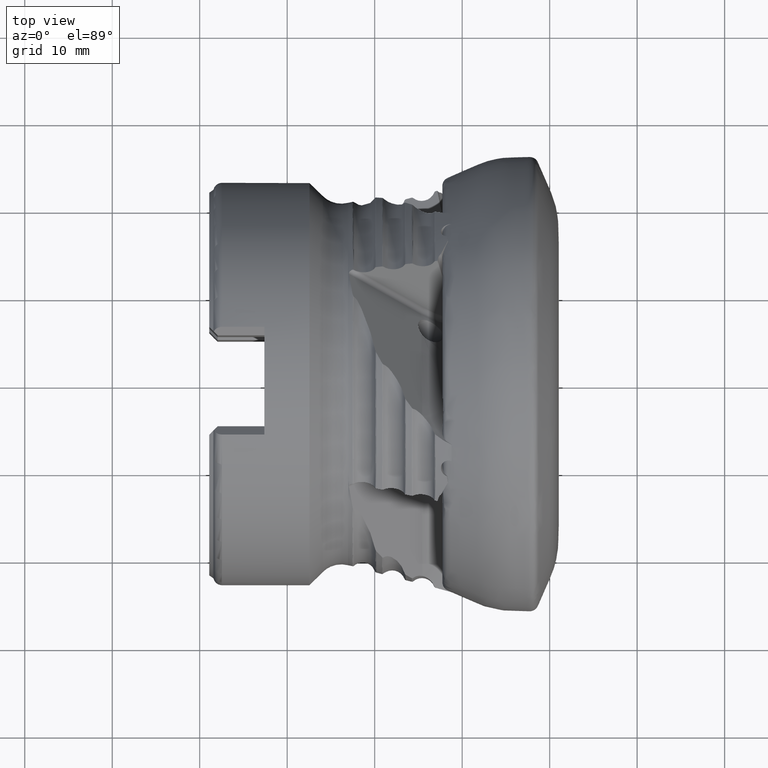
[diagram: clean part render]
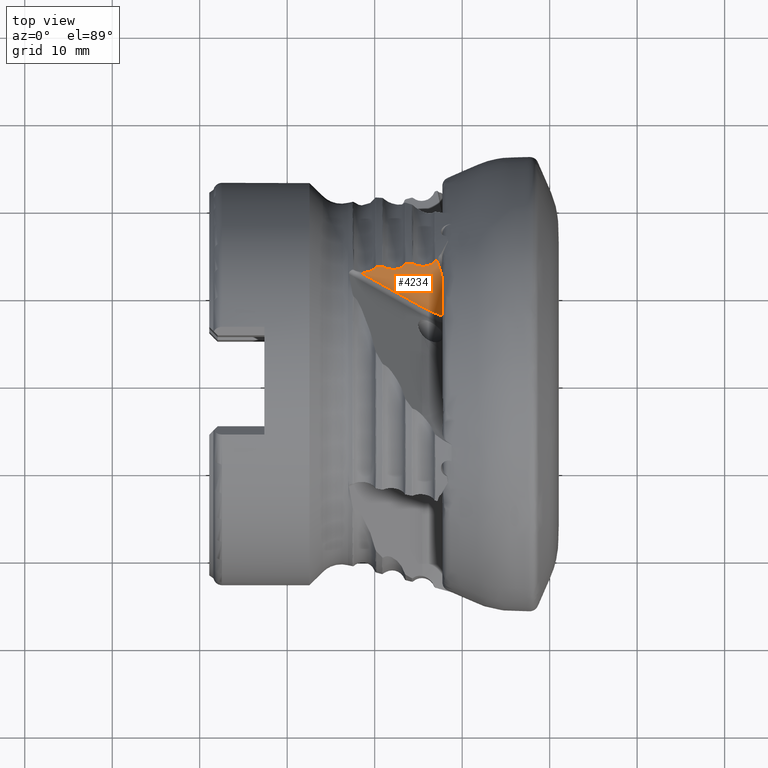
[diagram: same view with one face highlighted and labeled with its STEP entity id]
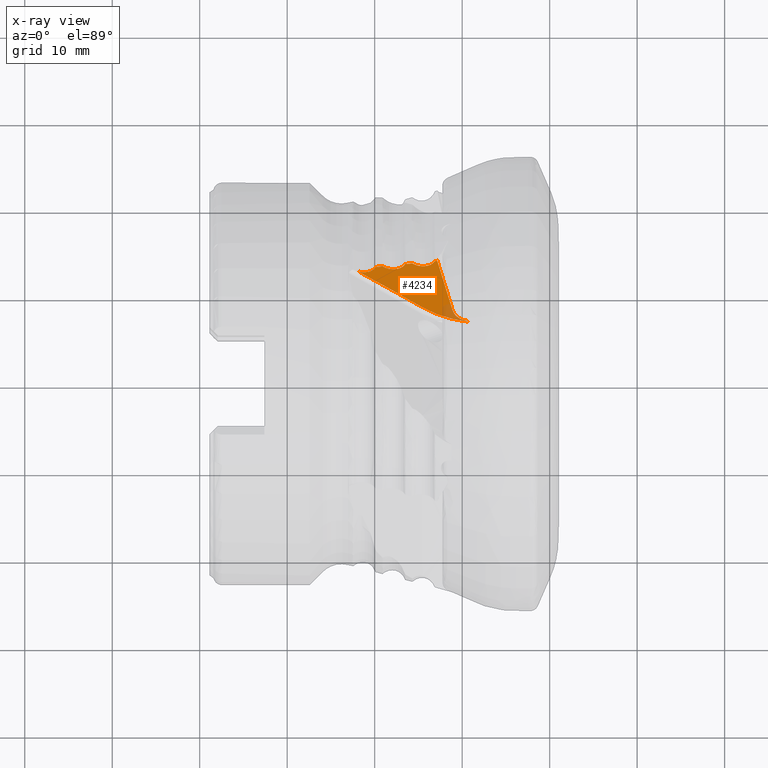
[diagram: x-ray of the same camera — body ghosted, the highlighted face saturated]
A machine part, top view. The second image highlights one B-rep face of the part: STEP entity #4234.
The next image is the same camera in x-ray: the body ghosted, the highlighted face saturated — about 6% of this face is hidden behind the body in this view.
In plain terms, the highlighted planar face has unit normal (0.0698, 0.807, -0.5864).
Its self-contained STEP definition (entity closure, byte-faithful):
#108 = CARTESIAN_POINT ( 'NONE',  ( -16.43861068266126300, 13.40157069699173900, 17.99083532026825300 ) ) ;
#143 = CARTESIAN_POINT ( 'NONE',  ( -9.397458177563091700, 7.030580160949561700, 10.05958109203079000 ) ) ;
#173 = CARTESIAN_POINT ( 'NONE',  ( -10.78956742215183000, 7.656934424120536600, 10.75606927445182700 ) ) ;
#212 = VERTEX_POINT ( 'NONE', #1085 ) ;
#238 = CARTESIAN_POINT ( 'NONE',  ( -18.09850826208656800, 12.82970374015972400, 17.00625561156784100 ) ) ;
#311 = EDGE_CURVE ( 'NONE', #12110, #10103, #8248, .T. ) ;
#318 = B_SPLINE_CURVE_WITH_KNOTS ( 'NONE', 3,
 ( #12067, #13151, #2555, #10073 ),
 .UNSPECIFIED., .F., .F.,
 ( 4, 4 ),
 ( 2.071828932983217700E-007, 0.0006823172012775557000 ),
 .UNSPECIFIED. ) ;
#396 = EDGE_CURVE ( 'NONE', #9804, #9575, #12041, .T. ) ;
#402 = ORIENTED_EDGE ( 'NONE', *, *, #311, .T. ) ;
#553 = VERTEX_POINT ( 'NONE', #957 ) ;
#605 = CARTESIAN_POINT ( 'NONE',  ( -13.78147426616036600, 13.24804150249320300, 18.09563099314815200 ) ) ;
#838 = EDGE_CURVE ( 'NONE', #3448, #9779, #7703, .T. ) ;
#902 = CARTESIAN_POINT ( 'NONE',  ( -16.57686742858335500, 13.33455268818872600, 17.88214500986381200 ) ) ;
#909 = B_SPLINE_CURVE_WITH_KNOTS ( 'NONE', 3,
 ( #3280, #9722, #11814, #5384 ),
 .UNSPECIFIED., .F., .F.,
 ( 4, 4 ),
 ( 0.006293737897955696500, 0.008576595139666872900 ),
 .UNSPECIFIED. ) ;
#917 = ORIENTED_EDGE ( 'NONE', *, *, #5654, .T. ) ;
#957 = CARTESIAN_POINT ( 'NONE',  ( -19.82556857491016800, 13.07202306451201900, 17.13431705826625900 ) ) ;
#1085 = CARTESIAN_POINT ( 'NONE',  ( -15.59741707130248200, 13.42956506044176900, 18.12944019837567600 ) ) ;
#1124 = CARTESIAN_POINT ( 'NONE',  ( -8.652012492192163500, 8.489239308456161500, 12.15593630807647000 ) ) ;
#1276 = CARTESIAN_POINT ( 'NONE',  ( -17.73355322210864700, 12.82021816998018000, 17.03661730387327800 ) ) ;
#1294 = AXIS2_PLACEMENT_3D ( 'NONE', #4786, #5887, #13347 ) ;
#1310 = CARTESIAN_POINT ( 'NONE',  ( -21.44799061497791100, 12.49695347634819400, 16.14978764313628200 ) ) ;
#1325 = CARTESIAN_POINT ( 'NONE',  ( -19.16711922229170300, 13.13622455116607800, 17.30101630333915700 ) ) ;
#1562 = DIRECTION ( 'NONE',  ( -0.06975647374411166100, -0.8070462696377019900, 0.5863534369598740700 ) ) ;
#1637 = CARTESIAN_POINT ( 'NONE',  ( -13.41097358463003900, 13.41496708648232800, 18.36946155473117100 ) ) ;
#1661 = AXIS2_PLACEMENT_3D ( 'NONE', #7937, #1562, #9038 ) ;
#1680 = CARTESIAN_POINT ( 'NONE',  ( -12.91288166073550900, 13.74291754459847500, 18.88010293787429500 ) ) ;
#1801 = VECTOR ( 'NONE', #12544, 1000.000000000000000 ) ;
#1861 = ORIENTED_EDGE ( 'NONE', *, *, #838, .F. ) ;
#1871 = EDGE_CURVE ( 'NONE', #5474, #2950, #5254, .T. ) ;
#1878 = ORIENTED_EDGE ( 'NONE', *, *, #8337, .T. ) ;
#1889 = VECTOR ( 'NONE', #8515, 1000.000000000000100 ) ;
#2040 = CARTESIAN_POINT ( 'NONE',  ( -11.00947268404274100, 8.060292500884134600, 11.28508265784952900 ) ) ;
#2132 = EDGE_CURVE ( 'NONE', #3448, #6011, #10698, .T. ) ;
#2159 = DIRECTION ( 'NONE',  ( 0.0000000000000000000, -0.5877852522924745800, -0.8090169943749462300 ) ) ;
#2289 = LINE ( 'NONE', #2319, #7992 ) ;
#2296 = EDGE_CURVE ( 'NONE', #11387, #3852, #11044, .T. ) ;
#2317 = CARTESIAN_POINT ( 'NONE',  ( -17.38184703372067500, 12.86342325395027500, 17.13792528912423300 ) ) ;
#2319 = CARTESIAN_POINT ( 'NONE',  ( -12.30943080110858300, 12.17640538204708100, 16.79577441509734100 ) ) ;
#2359 = CARTESIAN_POINT ( 'NONE',  ( -21.15950711162447500, 12.48950488767031100, 16.17385544138080200 ) ) ;
#2374 = CARTESIAN_POINT ( 'NONE',  ( -19.60609015536287100, 13.09343441009476000, 17.18989784817344800 ) ) ;
#2540 = CARTESIAN_POINT ( 'NONE',  ( -19.96382532083226400, 13.00492409718656700, 17.02551531801522700 ) ) ;
#2555 = CARTESIAN_POINT ( 'NONE',  ( -16.21913171739706500, 13.42287169382948300, 18.04626429307996100 ) ) ;
#2643 = CARTESIAN_POINT ( 'NONE',  ( -15.40434576522243600, 13.33033808226997900, 18.01583501609341900 ) ) ;
#2698 = CARTESIAN_POINT ( 'NONE',  ( -13.18990953633444500, 13.66256030447094700, 18.73654362141433800 ) ) ;
#2723 = B_SPLINE_CURVE_WITH_KNOTS ( 'NONE', 3,
 ( #13588, #6136, #7237, #902 ),
 .UNSPECIFIED., .F., .F.,
 ( 4, 4 ),
 ( 2.042441647271746600E-007, 0.0001950798160799178000 ),
 .UNSPECIFIED. ) ;
#2866 = VERTEX_POINT ( 'NONE', #2540 ) ;
#2913 = B_SPLINE_CURVE_WITH_KNOTS ( 'NONE', 3,
 ( #9780, #3343, #10827, #4402 ),
 .UNSPECIFIED., .F., .F.,
 ( 4, 4 ),
 ( 2.633986855497532700E-007, 0.0001951916215243826800 ),
 .UNSPECIFIED. ) ;
#2914 = CARTESIAN_POINT ( 'NONE',  ( -14.33897279392034600, 8.470638421954205900, 11.45377606293606300 ) ) ;
#2950 = VERTEX_POINT ( 'NONE', #6844 ) ;
#3012 = B_SPLINE_CURVE_WITH_KNOTS ( 'NONE', 3,
 ( #6483, #5402, #11885, #5448, #12898, #6526, #238, #7628, #1276, #8747, #2317, #9829, #3400, #10885, #4452, #11925 ),
 .UNSPECIFIED., .F., .F.,
 ( 4, 2, 2, 2, 2, 2, 2, 4 ),
 ( 2.631532426385982900E-007, 0.0003657034762038021900, 0.0007311437991649658300, 0.001096584122126129400, 0.001462024445087292900, 0.001827464768048456400, 0.002192905091009620200, 0.002923785736931947200 ),
 .UNSPECIFIED. ) ;
#3100 = B_SPLINE_CURVE_WITH_KNOTS ( 'NONE', 3,
 ( #3390, #7614, #5491, #12934 ),
 .UNSPECIFIED., .F., .F.,
 ( 4, 4 ),
 ( 0.0001455972518984827800, 0.0003280413437152031100 ),
 .UNSPECIFIED. ) ;
#3280 = CARTESIAN_POINT ( 'NONE',  ( -11.77801937799846100, 10.37595619004133200, 14.38088890775128100 ) ) ;
#3289 = CARTESIAN_POINT ( 'NONE',  ( -9.731791060759395200, 7.098119302108699500, 10.11276629901111200 ) ) ;
#3343 = CARTESIAN_POINT ( 'NONE',  ( -15.64677715462576100, 13.45793987725530800, 18.16262258203416000 ) ) ;
#3390 = CARTESIAN_POINT ( 'NONE',  ( -9.296369407557094200, 6.934858443081393100, 9.939857637193977500 ) ) ;
#3400 = CARTESIAN_POINT ( 'NONE',  ( -17.06687222965878400, 12.95670477249104000, 17.30378776571907900 ) ) ;
#3435 = CARTESIAN_POINT ( 'NONE',  ( -20.88123003647491400, 12.51448243198339000, 16.24133975878158500 ) ) ;
#3448 = VERTEX_POINT ( 'NONE', #12904 ) ;
#3602 = ORIENTED_EDGE ( 'NONE', *, *, #12189, .T. ) ;
#3697 = CARTESIAN_POINT ( 'NONE',  ( -19.16711922229170300, 13.13622455116607800, 17.30101630333915700 ) ) ;
#3744 = CARTESIAN_POINT ( 'NONE',  ( -15.07131541548856300, 13.22006549212548200, 17.90367730450368100 ) ) ;
#3797 = ORIENTED_EDGE ( 'NONE', *, *, #2132, .T. ) ;
#3815 = VERTEX_POINT ( 'NONE', #2040 ) ;
#3830 = CARTESIAN_POINT ( 'NONE',  ( -9.296369407557094200, 6.934858443081393100, 9.939857637193977500 ) ) ;
#3852 = VERTEX_POINT ( 'NONE', #4235 ) ;
#4100 = CARTESIAN_POINT ( 'NONE',  ( -15.78016133004279300, 13.46544482704581500, 18.15708399763538900 ) ) ;
#4234 = ADVANCED_FACE ( 'NONE', ( #4309 ), #12290, .F. ) ;
#4235 = CARTESIAN_POINT ( 'NONE',  ( -11.02181243157380300, 8.099364370274470200, 11.33739245469085300 ) ) ;
#4309 = FACE_OUTER_BOUND ( 'NONE', #5107, .T. ) ;
#4402 = CARTESIAN_POINT ( 'NONE',  ( -15.78016133004279300, 13.46544482704581500, 18.15708399763538900 ) ) ;
#4452 = CARTESIAN_POINT ( 'NONE',  ( -16.65879395285666200, 13.20218425536682000, 17.69020897219064300 ) ) ;
#4498 = CARTESIAN_POINT ( 'NONE',  ( -20.53437351773821000, 12.59166987306996400, 16.38884349728179400 ) ) ;
#4616 = B_SPLINE_CURVE_WITH_KNOTS ( 'NONE', 3,
 ( #10910, #11906, #11945, #5525 ),
 .UNSPECIFIED., .F., .F.,
 ( 4, 4 ),
 ( 2.042851625453270200E-007, 0.0001951627072948550600 ),
 .UNSPECIFIED. ) ;
#4749 = CARTESIAN_POINT ( 'NONE',  ( -13.18990953633444500, 13.66256030447094700, 18.73654362141433800 ) ) ;
#4780 = CARTESIAN_POINT ( 'NONE',  ( -14.71191661509523200, 13.15850046980986600, 17.86169677353877100 ) ) ;
#4786 = CARTESIAN_POINT ( 'NONE',  ( -8.324240303673304800, 12.39586971500646400, 17.57194571187131900 ) ) ;
#4801 = DIRECTION ( 'NONE',  ( -0.06975647374411166100, -0.8070462696377019900, 0.5863534369598740700 ) ) ;
#5107 = EDGE_LOOP ( 'NONE', ( #917, #5715, #9982, #7864, #8535, #8418, #12319, #5649, #1861, #3797, #11276, #13103, #3602, #1878, #9816, #5494, #8543, #11184, #8839, #10266, #402 ) ) ;
#5133 = CARTESIAN_POINT ( 'NONE',  ( -11.77801937799846100, 10.37595619004133200, 14.38088890775128100 ) ) ;
#5254 = B_SPLINE_CURVE_WITH_KNOTS ( 'NONE', 3,
 ( #11822, #11774, #3289, #5393, #12853, #6474, #173, #7577 ),
 .UNSPECIFIED., .F., .F.,
 ( 4, 2, 2, 4 ),
 ( 0.0003686685164815478500, 0.0008822852126406577000, 0.001395901908799767600, 0.002423135301117989800 ),
 .UNSPECIFIED. ) ;
#5271 = EDGE_CURVE ( 'NONE', #9199, #8039, #2723, .T. ) ;
#5311 = CARTESIAN_POINT ( 'NONE',  ( -13.05165279041235000, 13.72951235472983600, 18.84514314767114500 ) ) ;
#5344 = CARTESIAN_POINT ( 'NONE',  ( -13.16807515463631300, 13.69782569677268200, 18.78767983191141900 ) ) ;
#5384 = CARTESIAN_POINT ( 'NONE',  ( -12.20164075352019300, 11.71728663572583600, 16.17667508858540500 ) ) ;
#5393 = CARTESIAN_POINT ( 'NONE',  ( -10.04071098008520800, 7.199935763844577800, 10.21615348422908700 ) ) ;
#5402 = CARTESIAN_POINT ( 'NONE',  ( -18.89178927181045300, 13.04723702992555400, 17.21129055555036700 ) ) ;
#5448 = CARTESIAN_POINT ( 'NONE',  ( -18.57466319345568500, 12.92308117914809700, 17.07813209796523400 ) ) ;
#5474 = VERTEX_POINT ( 'NONE', #143 ) ;
#5491 = CARTESIAN_POINT ( 'NONE',  ( -9.365284700527322300, 6.998301575133290900, 10.01898099915893600 ) ) ;
#5494 = ORIENTED_EDGE ( 'NONE', *, *, #9461, .F. ) ;
#5525 = CARTESIAN_POINT ( 'NONE',  ( -19.96382532083226400, 13.00492409718656700, 17.02551531801522700 ) ) ;
#5526 = EDGE_CURVE ( 'NONE', #9575, #553, #13006, .T. ) ;
#5536 = CARTESIAN_POINT ( 'NONE',  ( -20.12674045869474400, 12.80813587488011000, 16.73527810692247200 ) ) ;
#5649 = ORIENTED_EDGE ( 'NONE', *, *, #12477, .T. ) ;
#5654 = EDGE_CURVE ( 'NONE', #10103, #6306, #11801, .T. ) ;
#5715 = ORIENTED_EDGE ( 'NONE', *, *, #6560, .T. ) ;
#5831 = CARTESIAN_POINT ( 'NONE',  ( -14.34696883153343800, 13.14878992398179500, 17.89174795015788500 ) ) ;
#5887 = DIRECTION ( 'NONE',  ( 0.06975647374411163300, 0.8070462696377018700, -0.5863534369598739600 ) ) ;
#6011 = VERTEX_POINT ( 'NONE', #5311 ) ;
#6110 = EDGE_CURVE ( 'NONE', #12110, #2866, #12560, .T. ) ;
#6136 = CARTESIAN_POINT ( 'NONE',  ( -16.50220528946682600, 13.39539867719552500, 17.97477462977176500 ) ) ;
#6153 = CARTESIAN_POINT ( 'NONE',  ( -14.57450398657556100, 19.23058478786030900, 26.23555136144604600 ) ) ;
#6306 = VERTEX_POINT ( 'NONE', #3830 ) ;
#6418 = EDGE_CURVE ( 'NONE', #6446, #11387, #12746, .T. ) ;
#6446 = VERTEX_POINT ( 'NONE', #5133 ) ;
#6474 = CARTESIAN_POINT ( 'NONE',  ( -10.58321797656537900, 7.477513129714875400, 10.53366574026837400 ) ) ;
#6483 = CARTESIAN_POINT ( 'NONE',  ( -18.98437496355138900, 13.10042530422170000, 17.27348332988325600 ) ) ;
#6492 = VERTEX_POINT ( 'NONE', #4100 ) ;
#6526 = CARTESIAN_POINT ( 'NONE',  ( -18.22147809661717600, 12.84473060172881800, 17.01230900925636600 ) ) ;
#6560 = EDGE_CURVE ( 'NONE', #6306, #5474, #3100, .T. ) ;
#6608 = CARTESIAN_POINT ( 'NONE',  ( -19.96382532083226400, 13.00492409718656700, 17.02551531801522700 ) ) ;
#6844 = CARTESIAN_POINT ( 'NONE',  ( -10.91284576056877500, 7.853942336758898100, 11.01256139904253400 ) ) ;
#6866 = CARTESIAN_POINT ( 'NONE',  ( -15.50487232650634800, 13.37636538969873900, 18.06722686686061200 ) ) ;
#6911 = CARTESIAN_POINT ( 'NONE',  ( -13.99519617090303600, 13.19177736772873500, 17.99276428731708000 ) ) ;
#7027 = VECTOR ( 'NONE', #12351, 1000.000000000000000 ) ;
#7237 = CARTESIAN_POINT ( 'NONE',  ( -16.55503218237437900, 13.36983182820594400, 17.93330024531584900 ) ) ;
#7298 = EDGE_CURVE ( 'NONE', #3815, #2950, #10363, .T. ) ;
#7577 = CARTESIAN_POINT ( 'NONE',  ( -10.91284576056877500, 7.853942336758898100, 11.01256139904253400 ) ) ;
#7614 = CARTESIAN_POINT ( 'NONE',  ( -9.331724005736180800, 6.966361277582811000, 9.979011552768859900 ) ) ;
#7628 = CARTESIAN_POINT ( 'NONE',  ( -17.85401114173199500, 12.81755122342778600, 17.01861609793060400 ) ) ;
#7664 = EDGE_CURVE ( 'NONE', #3815, #3852, #2289, .T. ) ;
#7669 = CARTESIAN_POINT ( 'NONE',  ( -21.63791476225744500, 12.51974834464466300, 16.15856745801920300 ) ) ;
#7682 = DIRECTION ( 'NONE',  ( -0.1857083024379776500, 0.5880161258804218500, 0.7872416796068311100 ) ) ;
#7703 = LINE ( 'NONE', #8858, #7027 ) ;
#7746 = CARTESIAN_POINT ( 'NONE',  ( -19.16711922229170300, 13.13622455116607800, 17.30101630333915700 ) ) ;
#7785 = AXIS2_PLACEMENT_3D ( 'NONE', #11232, #4801, #12263 ) ;
#7816 = CARTESIAN_POINT ( 'NONE',  ( -19.03374485660783600, 13.12878713167561000, 17.30664666819140500 ) ) ;
#7834 = CARTESIAN_POINT ( 'NONE',  ( -19.10352484043138000, 13.14242201125503800, 17.31711198263366200 ) ) ;
#7864 = ORIENTED_EDGE ( 'NONE', *, *, #7298, .F. ) ;
#7937 = CARTESIAN_POINT ( 'NONE',  ( -8.324240303673304800, 12.39586971500646400, 17.57194571187131900 ) ) ;
#7964 = CARTESIAN_POINT ( 'NONE',  ( -11.13890039147297300, 8.352286459072505700, 11.67158028871967100 ) ) ;
#7975 = CARTESIAN_POINT ( 'NONE',  ( -18.98437496355138900, 13.10042530422170000, 17.27348332988325600 ) ) ;
#7992 = VECTOR ( 'NONE', #7682, 1000.000000000000000 ) ;
#8026 = CARTESIAN_POINT ( 'NONE',  ( -13.68011390152142100, 13.28488377772009700, 18.15839853245392300 ) ) ;
#8039 = VERTEX_POINT ( 'NONE', #12476 ) ;
#8073 = CARTESIAN_POINT ( 'NONE',  ( -12.98226741132286200, 13.73621538115905200, 18.86262361457657700 ) ) ;
#8225 = CARTESIAN_POINT ( 'NONE',  ( -12.20164075352019300, 11.71728663572583600, 16.17667508858540500 ) ) ;
#8248 = LINE ( 'NONE', #8416, #1889 ) ;
#8337 = EDGE_CURVE ( 'NONE', #6492, #9199, #318, .T. ) ;
#8416 = CARTESIAN_POINT ( 'NONE',  ( -14.33897279392035500, 8.470638421954204100, 11.45377606293606100 ) ) ;
#8418 = ORIENTED_EDGE ( 'NONE', *, *, #2296, .F. ) ;
#8429 = EDGE_CURVE ( 'NONE', #212, #10568, #11653, .T. ) ;
#8515 = DIRECTION ( 'NONE',  ( 0.7672847685016593900, -0.4190357909633837800, -0.4854720279450156500 ) ) ;
#8535 = ORIENTED_EDGE ( 'NONE', *, *, #7664, .T. ) ;
#8543 = ORIENTED_EDGE ( 'NONE', *, *, #396, .T. ) ;
#8580 = DIRECTION ( 'NONE',  ( -0.06975647374411166100, -0.8070462696377019900, 0.5863534369598740700 ) ) ;
#8607 = AXIS2_PLACEMENT_3D ( 'NONE', #1124, #8580, #2159 ) ;
#8747 = CARTESIAN_POINT ( 'NONE',  ( -17.49624793383155500, 12.84318138959950800, 17.09645486707680800 ) ) ;
#8760 = EDGE_CURVE ( 'NONE', #6011, #10568, #12065, .T. ) ;
#8782 = CARTESIAN_POINT ( 'NONE',  ( -21.35061066311600400, 12.49077426230795100, 16.15286764625547300 ) ) ;
#8797 = CARTESIAN_POINT ( 'NONE',  ( -19.38660699923315200, 13.11483482001872700, 17.24546414993271200 ) ) ;
#8829 = EDGE_CURVE ( 'NONE', #553, #2866, #4616, .T. ) ;
#8839 = ORIENTED_EDGE ( 'NONE', *, *, #8829, .T. ) ;
#8858 = CARTESIAN_POINT ( 'NONE',  ( -14.57450398657556100, 19.23058478786030900, 26.23555136144604600 ) ) ;
#9038 = DIRECTION ( 'NONE',  ( 1.838633322104422000E-015, 0.5877852522924743600, 0.8090169943749466700 ) ) ;
#9129 = CARTESIAN_POINT ( 'NONE',  ( -13.27185217578924400, 13.53021218641730900, 18.54463362745260500 ) ) ;
#9168 = CARTESIAN_POINT ( 'NONE',  ( -12.84349554130655900, 13.74961885100721500, 18.89758112545030500 ) ) ;
#9199 = VERTEX_POINT ( 'NONE', #108 ) ;
#9461 = EDGE_CURVE ( 'NONE', #9804, #8039, #3012, .T. ) ;
#9473 = CARTESIAN_POINT ( 'NONE',  ( -21.82370310153726900, 12.55826014123390700, 16.18947179185820700 ) ) ;
#9575 = VERTEX_POINT ( 'NONE', #3697 ) ;
#9671 = CARTESIAN_POINT ( 'NONE',  ( -13.11523731890928500, 13.72336972380964700, 18.82912410647437400 ) ) ;
#9722 = CARTESIAN_POINT ( 'NONE',  ( -12.00261872128174500, 10.81296764446554600, 14.95566375282887100 ) ) ;
#9779 = VERTEX_POINT ( 'NONE', #8225 ) ;
#9780 = CARTESIAN_POINT ( 'NONE',  ( -15.59741707130248200, 13.42956506044176900, 18.12944019837567600 ) ) ;
#9804 = VERTEX_POINT ( 'NONE', #12985 ) ;
#9816 = ORIENTED_EDGE ( 'NONE', *, *, #5271, .T. ) ;
#9829 = CARTESIAN_POINT ( 'NONE',  ( -17.16818908819229600, 12.91981008141259600, 17.24095325795623900 ) ) ;
#9866 = CARTESIAN_POINT ( 'NONE',  ( -21.06563337463098800, 12.49425418457294500, 16.19156012692394600 ) ) ;
#9886 = CARTESIAN_POINT ( 'NONE',  ( -19.82556857491016800, 13.07202306451201900, 17.13431705826625900 ) ) ;
#9982 = ORIENTED_EDGE ( 'NONE', *, *, #1871, .T. ) ;
#10073 = CARTESIAN_POINT ( 'NONE',  ( -16.43861068266126300, 13.40157069699173900, 17.99083532026825300 ) ) ;
#10103 = VERTEX_POINT ( 'NONE', #2914 ) ;
#10158 = CARTESIAN_POINT ( 'NONE',  ( -15.18789862198804900, 13.25211634734107600, 17.93392201467235500 ) ) ;
#10251 = CARTESIAN_POINT ( 'NONE',  ( -13.05165279041235000, 13.72951235472983600, 18.84514314767114500 ) ) ;
#10266 = ORIENTED_EDGE ( 'NONE', *, *, #6110, .F. ) ;
#10363 = CIRCLE ( 'NONE', #7785, 1.999999999999998200 ) ;
#10568 = VERTEX_POINT ( 'NONE', #4749 ) ;
#10698 = B_SPLINE_CURVE_WITH_KNOTS ( 'NONE', 3,
 ( #9168, #1680, #8073, #10251 ),
 .UNSPECIFIED., .F., .F.,
 ( 4, 4 ),
 ( 0.001940558869567106300, 0.002156159081865274900 ),
 .UNSPECIFIED. ) ;
#10733 = CARTESIAN_POINT ( 'NONE',  ( -13.05165279041235000, 13.72951235472983600, 18.84514314767114500 ) ) ;
#10827 = CARTESIAN_POINT ( 'NONE',  ( -15.71654555970165600, 13.47161311267451300, 18.17314206624505600 ) ) ;
#10885 = CARTESIAN_POINT ( 'NONE',  ( -16.79786497003318500, 13.08690045964577700, 17.51498963421374800 ) ) ;
#10910 = CARTESIAN_POINT ( 'NONE',  ( -19.82556857491016800, 13.07202306451201900, 17.13431705826625900 ) ) ;
#10918 = CARTESIAN_POINT ( 'NONE',  ( -20.79038518658909500, 12.53017007034139100, 16.27373944334828000 ) ) ;
#11044 = CIRCLE ( 'NONE', #8607, 2.537315167658677600 ) ;
#11184 = ORIENTED_EDGE ( 'NONE', *, *, #5526, .T. ) ;
#11204 = CARTESIAN_POINT ( 'NONE',  ( -14.83483983785600400, 13.17359646621139800, 17.86785087240442100 ) ) ;
#11232 = CARTESIAN_POINT ( 'NONE',  ( -9.049221209587088300, 8.168243496589589400, 11.66686890618835400 ) ) ;
#11276 = ORIENTED_EDGE ( 'NONE', *, *, #8760, .T. ) ;
#11387 = VERTEX_POINT ( 'NONE', #7964 ) ;
#11653 = B_SPLINE_CURVE_WITH_KNOTS ( 'NONE', 3,
 ( #12154, #6866, #2643, #10158, #3744, #11204, #4780, #12244, #5831, #13288, #6911, #605, #8026, #1637, #9129, #2698 ),
 .UNSPECIFIED., .F., .F.,
 ( 4, 2, 2, 2, 2, 2, 2, 4 ),
 ( 2.632379169981568400E-007, 0.0003656594739674015200, 0.0007310557100178049500, 0.001096451946068208200, 0.001461848182118611600, 0.001827244418169015000, 0.002192640654219418300, 0.002923433126320225100 ),
 .UNSPECIFIED. ) ;
#11774 = CARTESIAN_POINT ( 'NONE',  ( -9.565720063031806200, 7.057795740755692800, 10.07702257985688600 ) ) ;
#11801 = CIRCLE ( 'NONE', #1661, 9.434852806819121100 ) ;
#11814 = CARTESIAN_POINT ( 'NONE',  ( -12.14561216382172200, 11.25986147220923300, 15.55374889428005700 ) ) ;
#11822 = CARTESIAN_POINT ( 'NONE',  ( -9.397458177563091700, 7.030580160949561700, 10.05958109203079000 ) ) ;
#11885 = CARTESIAN_POINT ( 'NONE',  ( -18.79121564188607600, 13.00123320679303500, 17.15993662773999200 ) ) ;
#11906 = CARTESIAN_POINT ( 'NONE',  ( -19.88917742262438500, 13.06581766617109100, 17.11820873195183900 ) ) ;
#11915 = CARTESIAN_POINT ( 'NONE',  ( -21.73151267692094300, 12.53632986587126800, 16.17025493854230000 ) ) ;
#11925 = CARTESIAN_POINT ( 'NONE',  ( -16.57686742858335500, 13.33455268818872600, 17.88214500986381200 ) ) ;
#11945 = CARTESIAN_POINT ( 'NONE',  ( -19.94199037100875000, 13.04022083225857600, 17.07669473572259700 ) ) ;
#11958 = CARTESIAN_POINT ( 'NONE',  ( -20.37893878827300800, 12.65363618256996300, 16.49262434636414600 ) ) ;
#12041 = B_SPLINE_CURVE_WITH_KNOTS ( 'NONE', 3,
 ( #7975, #7816, #7834, #7746 ),
 .UNSPECIFIED., .F., .F.,
 ( 4, 4 ),
 ( 2.633140719096435000E-007, 0.0001951676582338484500 ),
 .UNSPECIFIED. ) ;
#12065 = B_SPLINE_CURVE_WITH_KNOTS ( 'NONE', 3,
 ( #10733, #9671, #5344, #12789 ),
 .UNSPECIFIED., .F., .F.,
 ( 4, 4 ),
 ( 2.042076619280093400E-007, 0.0001950140101249179700 ),
 .UNSPECIFIED. ) ;
#12067 = CARTESIAN_POINT ( 'NONE',  ( -15.78016133004279300, 13.46544482704581500, 18.15708399763538900 ) ) ;
#12110 = VERTEX_POINT ( 'NONE', #9473 ) ;
#12154 = CARTESIAN_POINT ( 'NONE',  ( -15.59741707130248200, 13.42956506044176900, 18.12944019837567600 ) ) ;
#12189 = EDGE_CURVE ( 'NONE', #212, #6492, #2913, .T. ) ;
#12244 = CARTESIAN_POINT ( 'NONE',  ( -14.46742591247885400, 13.14619834723818500, 17.87385058163203800 ) ) ;
#12263 = DIRECTION ( 'NONE',  ( 0.9975640502598252000, -0.05643417272665611500, 0.04100182651871606100 ) ) ;
#12290 = PLANE ( 'NONE',  #1294 ) ;
#12319 = ORIENTED_EDGE ( 'NONE', *, *, #6418, .F. ) ;
#12351 = DIRECTION ( 'NONE',  ( 0.1857083024379777600, -0.5880161258804218500, -0.7872416796068311100 ) ) ;
#12476 = CARTESIAN_POINT ( 'NONE',  ( -16.57686742858335500, 13.33455268818872600, 17.88214500986381200 ) ) ;
#12477 = EDGE_CURVE ( 'NONE', #6446, #9779, #909, .T. ) ;
#12544 = DIRECTION ( 'NONE',  ( 0.1857083024379777600, -0.5880161258804218500, -0.7872416796068311100 ) ) ;
#12560 = B_SPLINE_CURVE_WITH_KNOTS ( 'NONE', 3,
 ( #12937, #11915, #7669, #1310, #8782, #2359, #9866, #3435, #10918, #4498, #11958, #5536, #12993, #6608 ),
 .UNSPECIFIED., .F., .F.,
 ( 4, 2, 2, 2, 2, 2, 4 ),
 ( 0.002041567936436421700, 0.002328509412489153000, 0.002615450888541884200, 0.002902392364594615100, 0.003189333840647346400, 0.003763216792752799800, 0.004337099744858252800 ),
 .UNSPECIFIED. ) ;
#12746 = LINE ( 'NONE', #6153, #1801 ) ;
#12789 = CARTESIAN_POINT ( 'NONE',  ( -13.18990953633444500, 13.66256030447094700, 18.73654362141433800 ) ) ;
#12853 = CARTESIAN_POINT ( 'NONE',  ( -10.18770056139701900, 7.262735674018615300, 10.28510329473880500 ) ) ;
#12898 = CARTESIAN_POINT ( 'NONE',  ( -18.45803327850839500, 12.89108115975483300, 17.04796291404847300 ) ) ;
#12904 = CARTESIAN_POINT ( 'NONE',  ( -12.84349554130655900, 13.74961885100721500, 18.89758112545030500 ) ) ;
#12934 = CARTESIAN_POINT ( 'NONE',  ( -9.397458177563091700, 7.030580160949561700, 10.05958109203079000 ) ) ;
#12937 = CARTESIAN_POINT ( 'NONE',  ( -21.82370310153726900, 12.55826014123390700, 16.18947179185820700 ) ) ;
#12985 = CARTESIAN_POINT ( 'NONE',  ( -18.98437496355138900, 13.10042530422170000, 17.27348332988325600 ) ) ;
#12993 = CARTESIAN_POINT ( 'NONE',  ( -20.02724413075941700, 12.90240602635635100, 16.87686657872334800 ) ) ;
#13006 = B_SPLINE_CURVE_WITH_KNOTS ( 'NONE', 3,
 ( #1325, #8797, #2374, #9886 ),
 .UNSPECIFIED., .F., .F.,
 ( 4, 4 ),
 ( 2.072251141564250600E-007, 0.0006824579262205308600 ),
 .UNSPECIFIED. ) ;
#13103 = ORIENTED_EDGE ( 'NONE', *, *, #8429, .F. ) ;
#13151 = CARTESIAN_POINT ( 'NONE',  ( -15.99964856726671100, 13.44416299776507800, 18.10168042261569000 ) ) ;
#13288 = CARTESIAN_POINT ( 'NONE',  ( -14.10966032384940400, 13.17160068582499100, 17.95137605623659400 ) ) ;
#13347 = DIRECTION ( 'NONE',  ( 0.9975640502598250900, -0.05643417272665576800, 0.04100182651871642900 ) ) ;
#13588 = CARTESIAN_POINT ( 'NONE',  ( -16.43861068266126300, 13.40157069699173900, 17.99083532026825300 ) ) ;